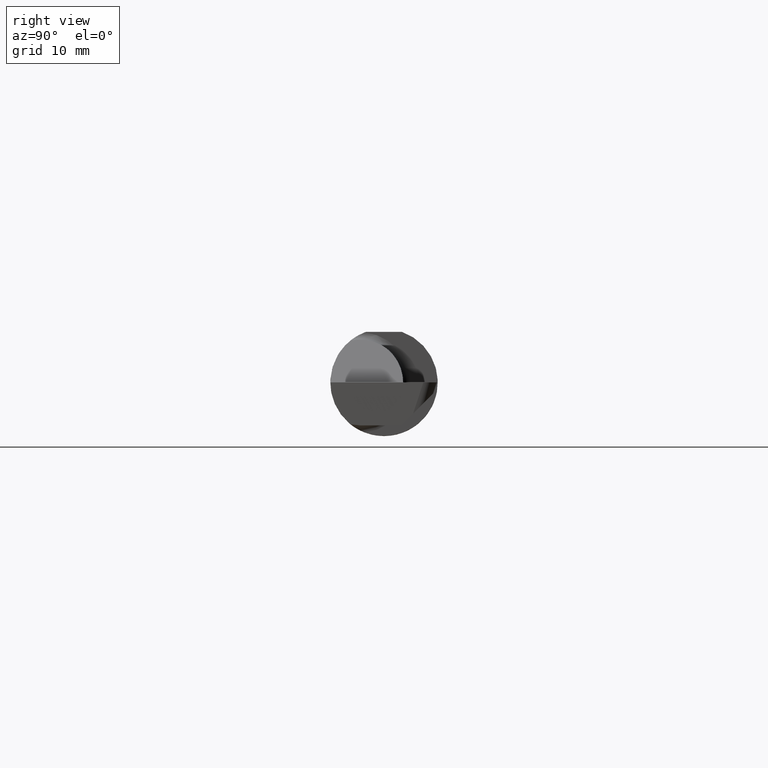
[diagram: clean part render]
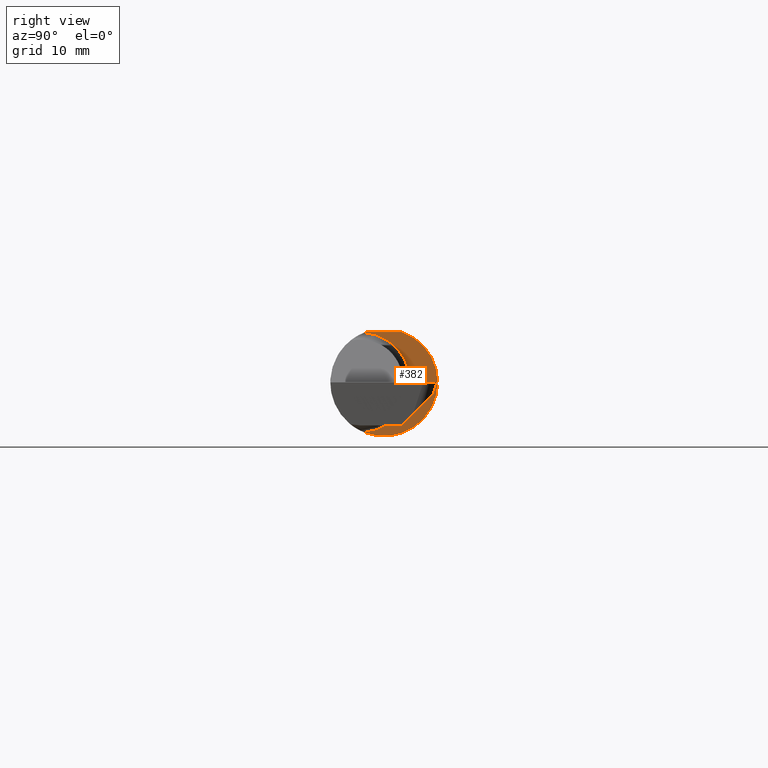
[diagram: same view with one face highlighted and labeled with its STEP entity id]
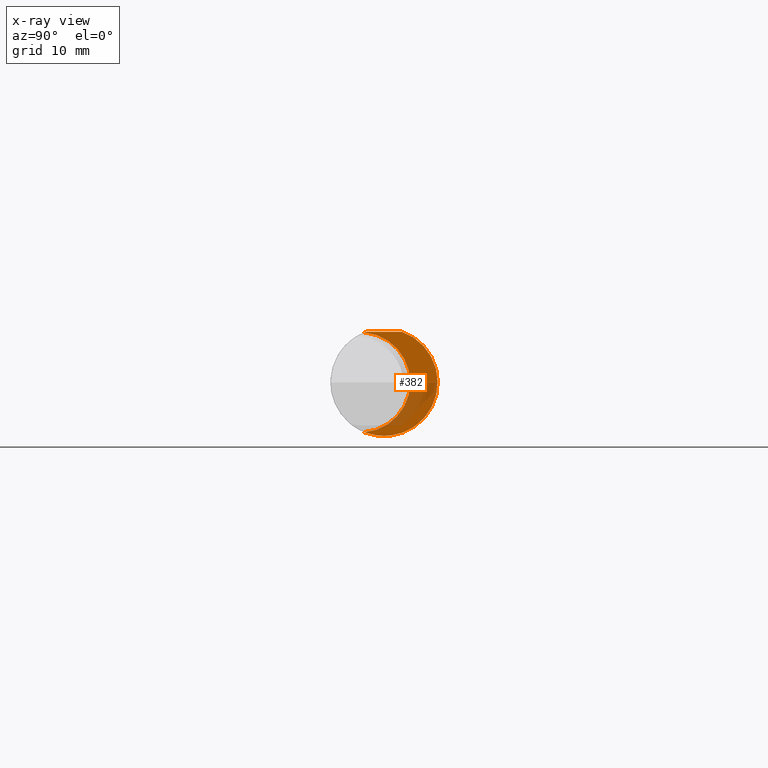
[diagram: x-ray of the same camera — body ghosted, the highlighted face saturated]
A machine part, right view. The second image highlights one B-rep face of the part: STEP entity #382.
The next image is the same camera in x-ray: the body ghosted, the highlighted face saturated — about 28% of this face is hidden behind the body in this view.
In plain terms, the highlighted planar face has unit normal (1, 0, 0).
Its self-contained STEP definition (entity closure, byte-faithful):
#4 = DIRECTION ( 'NONE',  ( -2.398695346254066018E-17, 1.000000000000000000, 0.000000000000000000 ) ) ;
#37 = ORIENTED_EDGE ( 'NONE', *, *, #170, .T. ) ;
#45 = CARTESIAN_POINT ( 'NONE',  ( 1.699999999999999956, -0.06325108694718287183, 0.1763499999999999235 ) ) ;
#75 = VERTEX_POINT ( 'NONE', #45 ) ;
#162 = ORIENTED_EDGE ( 'NONE', *, *, #221, .T. ) ;
#163 = LINE ( 'NONE', #400, #682 ) ;
#164 = EDGE_LOOP ( 'NONE', ( #37, #540, #283, #162 ) ) ;
#170 = EDGE_CURVE ( 'NONE', #322, #592, #457, .T. ) ;
#172 = DIRECTION ( 'NONE',  ( 0.000000000000000000, -1.000000000000000000, 0.000000000000000000 ) ) ;
#181 = CIRCLE ( 'NONE', #363, 0.1749999999999999056 ) ;
#186 = FACE_OUTER_BOUND ( 'NONE', #164, .T. ) ;
#194 = CARTESIAN_POINT ( 'NONE',  ( 1.699999999999999956, 0.1873499999999999055, 0.000000000000000000 ) ) ;
#221 = EDGE_CURVE ( 'NONE', #556, #322, #181, .T. ) ;
#226 = AXIS2_PLACEMENT_3D ( 'NONE', #194, #302, #524 ) ;
#227 = CIRCLE ( 'NONE', #628, 0.1873499999999999888 ) ;
#251 = DIRECTION ( 'NONE',  ( 0.000000000000000000, 1.000000000000000000, 0.000000000000000000 ) ) ;
#283 = ORIENTED_EDGE ( 'NONE', *, *, #554, .T. ) ;
#302 = DIRECTION ( 'NONE',  ( 1.000000000000000000, 2.398695346254066018E-17, 0.000000000000000000 ) ) ;
#304 = EDGE_CURVE ( 'NONE', #75, #592, #163, .T. ) ;
#322 = VERTEX_POINT ( 'NONE', #631 ) ;
#324 = CARTESIAN_POINT ( 'NONE',  ( 1.699999999999999956, 0.000000000000000000, 0.000000000000000000 ) ) ;
#363 = AXIS2_PLACEMENT_3D ( 'NONE', #555, #558, #172 ) ;
#374 = DIRECTION ( 'NONE',  ( 1.000000000000000000, 2.398695346254066018E-17, 0.000000000000000000 ) ) ;
#382 = ADVANCED_FACE ( 'NONE', ( #186 ), #570, .T. ) ;
#400 = CARTESIAN_POINT ( 'NONE',  ( 1.699999999999999956, 0.1873499999999998222, 0.1763499999999999235 ) ) ;
#457 = CIRCLE ( 'NONE', #572, 0.1873499999999999888 ) ;
#524 = DIRECTION ( 'NONE',  ( -2.398695346254066018E-17, 1.000000000000000000, 0.000000000000000000 ) ) ;
#538 = CARTESIAN_POINT ( 'NONE',  ( 1.699999999999999956, 0.06325108694718235836, 0.1763499999999999235 ) ) ;
#540 = ORIENTED_EDGE ( 'NONE', *, *, #304, .F. ) ;
#548 = DIRECTION ( 'NONE',  ( 1.000000000000000000, 2.398695346254066018E-17, 0.000000000000000000 ) ) ;
#554 = EDGE_CURVE ( 'NONE', #75, #556, #227, .T. ) ;
#555 = CARTESIAN_POINT ( 'NONE',  ( 1.699999999999999956, -0.08334999999999999354, 0.000000000000000000 ) ) ;
#556 = VERTEX_POINT ( 'NONE', #689 ) ;
#558 = DIRECTION ( 'NONE',  ( -1.000000000000000000, -2.398695346254066018E-17, -0.000000000000000000 ) ) ;
#570 = PLANE ( 'NONE',  #226 ) ;
#572 = AXIS2_PLACEMENT_3D ( 'NONE', #324, #548, #636 ) ;
#592 = VERTEX_POINT ( 'NONE', #538 ) ;
#628 = AXIS2_PLACEMENT_3D ( 'NONE', #692, #374, #251 ) ;
#631 = CARTESIAN_POINT ( 'NONE',  ( 1.699999999999999956, -0.06851976604679071992, -0.1743704796142198366 ) ) ;
#636 = DIRECTION ( 'NONE',  ( 0.000000000000000000, 1.000000000000000000, 0.000000000000000000 ) ) ;
#682 = VECTOR ( 'NONE', #4, 39.37007874015748143 ) ;
#689 = CARTESIAN_POINT ( 'NONE',  ( 1.699999999999999956, -0.06851976604679071992, 0.1743704796142198366 ) ) ;
#692 = CARTESIAN_POINT ( 'NONE',  ( 1.699999999999999956, 0.000000000000000000, 0.000000000000000000 ) ) ;